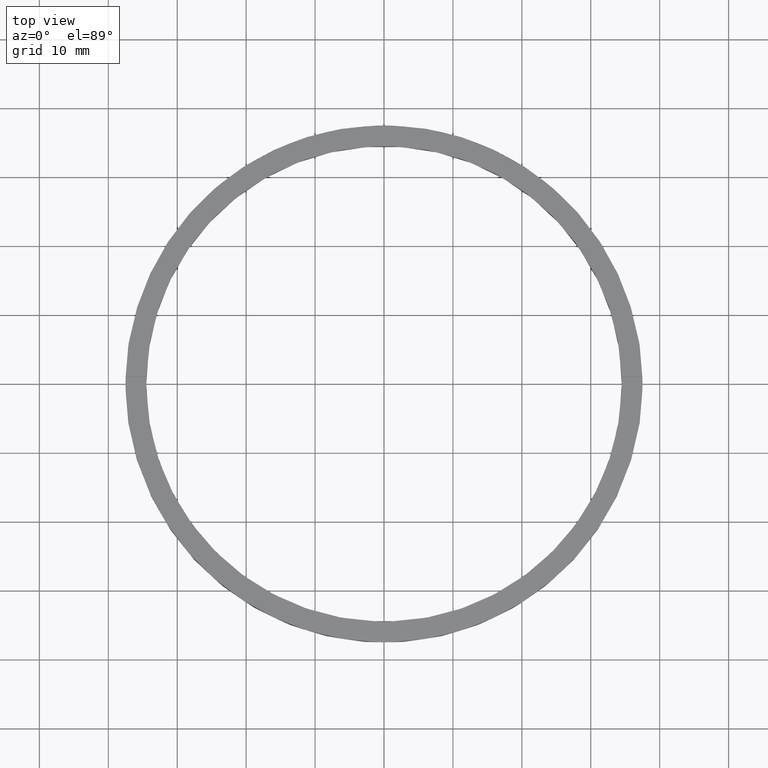
[diagram: clean part render]
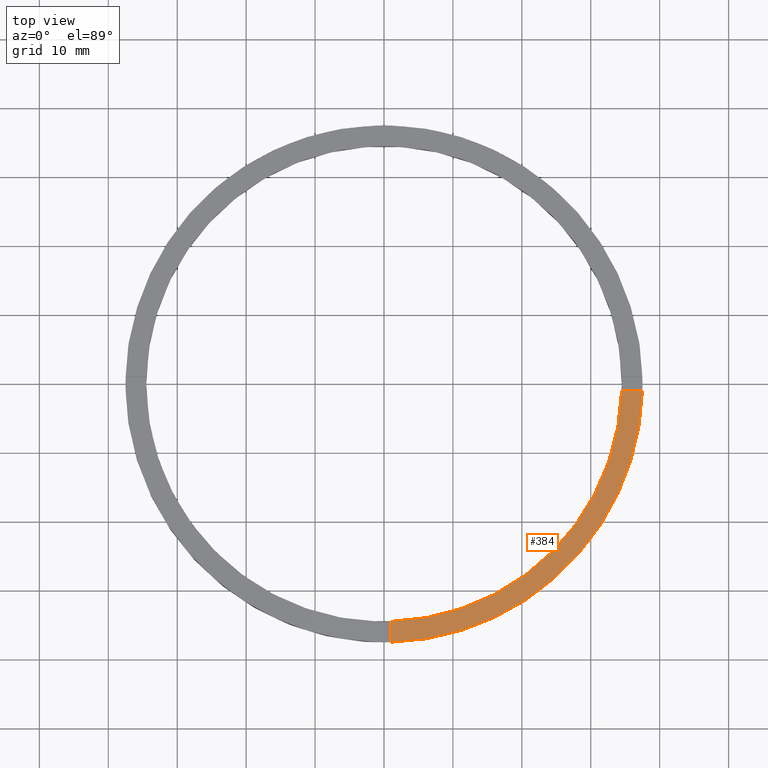
[diagram: same view with one face highlighted and labeled with its STEP entity id]
A machine part, top view. The second image highlights one B-rep face of the part: STEP entity #384.
In plain terms, the highlighted planar face has unit normal (0, 0, 1).
Its self-contained STEP definition (entity closure, byte-faithful):
#12 = CARTESIAN_POINT ( 'NONE',  ( 37.48666429545312440, -1.000000000000157430, 3.500000000000000000 ) ) ;
#30 = CARTESIAN_POINT ( 'NONE',  ( 0.000000000000000000, 0.000000000000000000, 3.500000000000000000 ) ) ;
#39 = PLANE ( 'NONE',  #155 ) ;
#42 = CARTESIAN_POINT ( 'NONE',  ( 0.000000000000000000, 0.000000000000000000, 3.500000000000000000 ) ) ;
#57 = CARTESIAN_POINT ( 'NONE',  ( 34.48550420104075442, -1.000000000000157652, 3.500000000000000000 ) ) ;
#61 = VECTOR ( 'NONE', #558, 1000.000000000000000 ) ;
#122 = CARTESIAN_POINT ( 'NONE',  ( 0.000000000000000000, 0.000000000000000000, 3.500000000000000000 ) ) ;
#124 = DIRECTION ( 'NONE',  ( 0.000000000000000000, 0.000000000000000000, 1.000000000000000000 ) ) ;
#135 = VECTOR ( 'NONE', #577, 1000.000000000000000 ) ;
#137 = EDGE_CURVE ( 'NONE', #217, #515, #592, .T. ) ;
#155 = AXIS2_PLACEMENT_3D ( 'NONE', #122, #170, #650 ) ;
#168 = ORIENTED_EDGE ( 'NONE', *, *, #388, .F. ) ;
#170 = DIRECTION ( 'NONE',  ( 0.000000000000000000, 0.000000000000000000, 1.000000000000000000 ) ) ;
#176 = CARTESIAN_POINT ( 'NONE',  ( 27.49999999999999645, -1.000000000000158096, 3.500000000000000000 ) ) ;
#177 = DIRECTION ( 'NONE',  ( 1.000000000000000000, 0.000000000000000000, 0.000000000000000000 ) ) ;
#194 = CARTESIAN_POINT ( 'NONE',  ( 0.9999999999998389066, -27.50000000000018474, 3.500000000000000000 ) ) ;
#206 = DIRECTION ( 'NONE',  ( 1.000000000000000000, 0.000000000000000000, 0.000000000000000000 ) ) ;
#217 = VERTEX_POINT ( 'NONE', #349 ) ;
#233 = VERTEX_POINT ( 'NONE', #12 ) ;
#253 = AXIS2_PLACEMENT_3D ( 'NONE', #42, #124, #177 ) ;
#257 = FACE_OUTER_BOUND ( 'NONE', #404, .T. ) ;
#259 = CARTESIAN_POINT ( 'NONE',  ( 0.9999999999998397948, -34.48550420104076153, 3.500000000000000000 ) ) ;
#270 = CIRCLE ( 'NONE', #317, 34.49999999999999289 ) ;
#317 = AXIS2_PLACEMENT_3D ( 'NONE', #30, #697, #206 ) ;
#349 = CARTESIAN_POINT ( 'NONE',  ( 0.9999999999998400169, -37.48666429545313150, 3.500000000000000000 ) ) ;
#371 = LINE ( 'NONE', #176, #135 ) ;
#384 = ADVANCED_FACE ( 'NONE', ( #257 ), #39, .T. ) ;
#388 = EDGE_CURVE ( 'NONE', #515, #653, #270, .T. ) ;
#404 = EDGE_LOOP ( 'NONE', ( #589, #168, #755, #681 ) ) ;
#515 = VERTEX_POINT ( 'NONE', #259 ) ;
#558 = DIRECTION ( 'NONE',  ( -1.301042606982605074E-16, 1.000000000000000000, -0.000000000000000000 ) ) ;
#577 = DIRECTION ( 'NONE',  ( 1.000000000000000000, 6.505213034913025371E-17, 0.000000000000000000 ) ) ;
#589 = ORIENTED_EDGE ( 'NONE', *, *, #776, .F. ) ;
#592 = LINE ( 'NONE', #194, #61 ) ;
#611 = CIRCLE ( 'NONE', #253, 37.50000000000000711 ) ;
#650 = DIRECTION ( 'NONE',  ( 1.000000000000000000, 0.000000000000000000, -0.000000000000000000 ) ) ;
#653 = VERTEX_POINT ( 'NONE', #57 ) ;
#664 = EDGE_CURVE ( 'NONE', #217, #233, #611, .T. ) ;
#681 = ORIENTED_EDGE ( 'NONE', *, *, #664, .T. ) ;
#697 = DIRECTION ( 'NONE',  ( 0.000000000000000000, 0.000000000000000000, 1.000000000000000000 ) ) ;
#755 = ORIENTED_EDGE ( 'NONE', *, *, #137, .F. ) ;
#776 = EDGE_CURVE ( 'NONE', #653, #233, #371, .T. ) ;